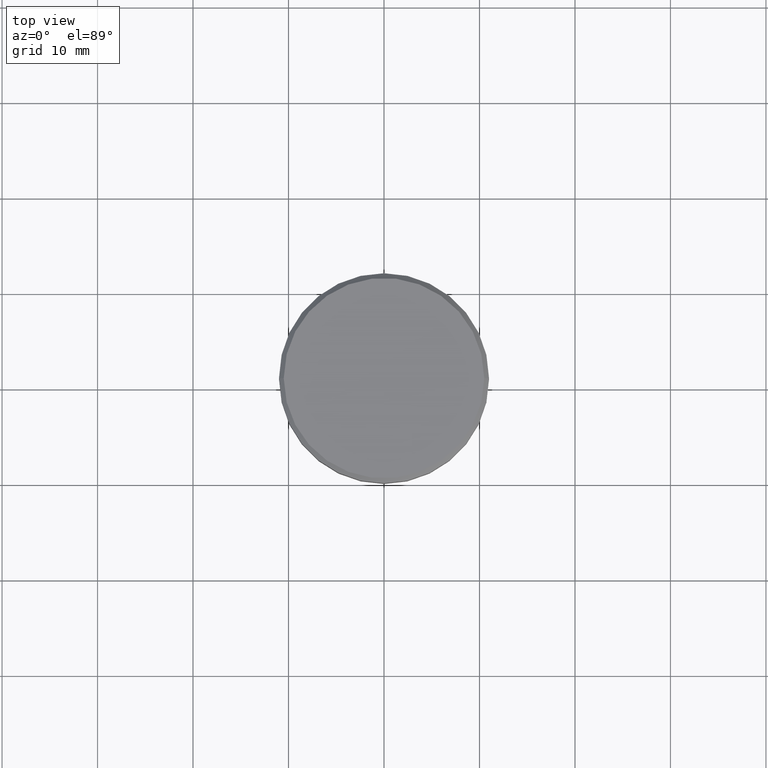
[diagram: clean part render]
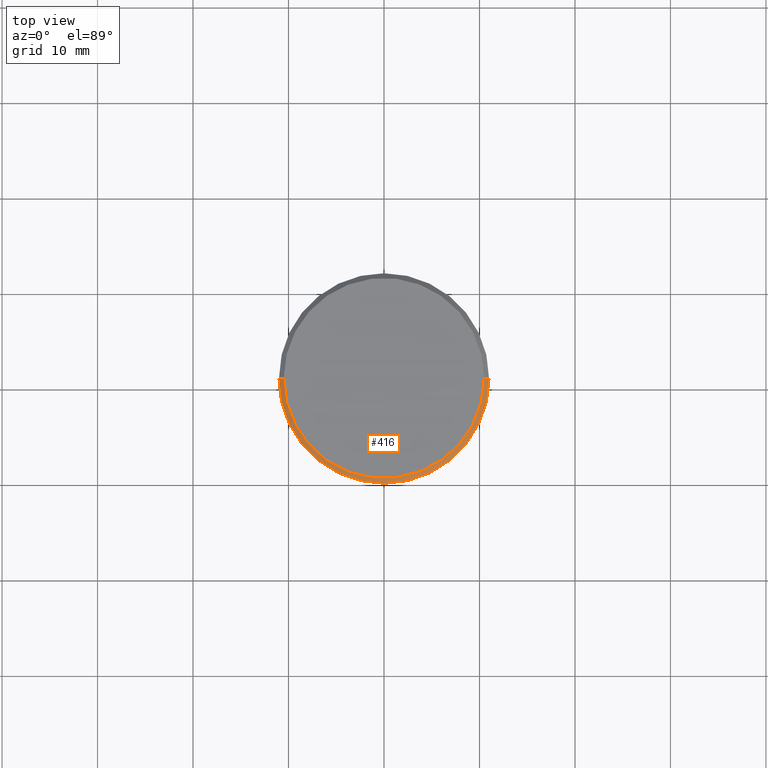
[diagram: same view with one face highlighted and labeled with its STEP entity id]
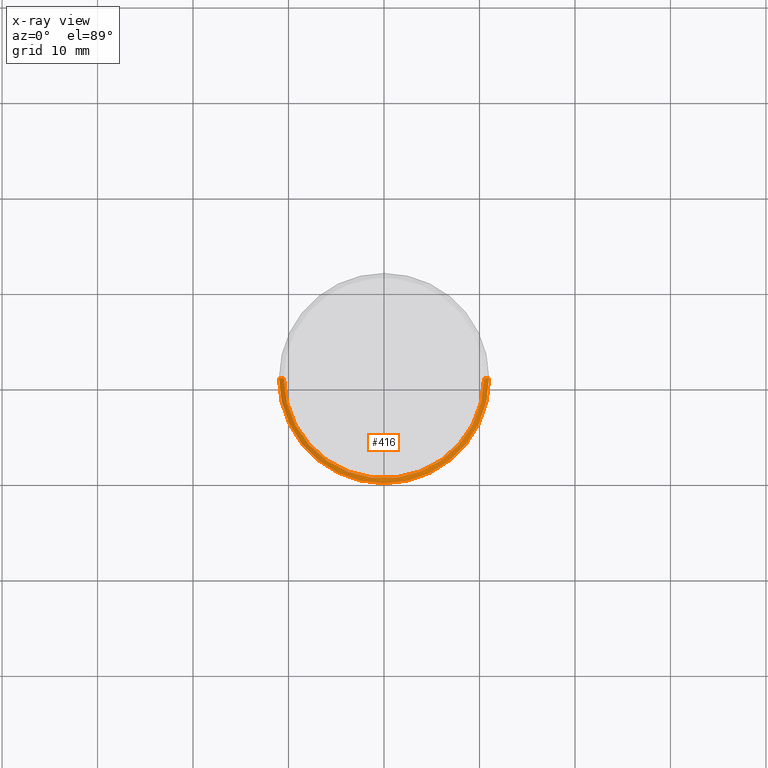
[diagram: x-ray of the same camera — body ghosted, the highlighted face saturated]
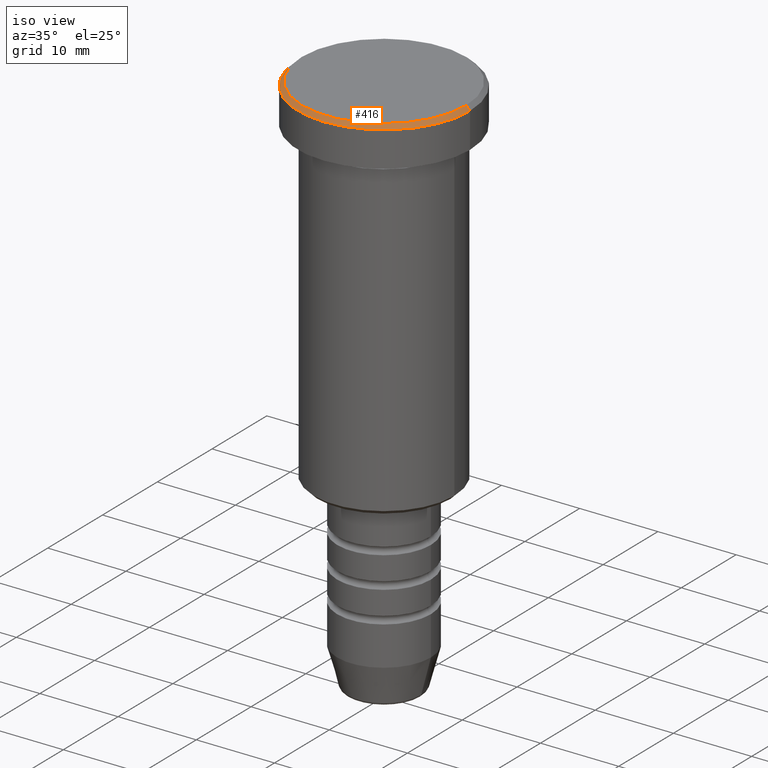
[diagram: same view with one face highlighted and labeled with its STEP entity id]
A machine part, top view. The second image highlights one B-rep face of the part: STEP entity #416.
The next image is the same camera in x-ray: the body ghosted, the highlighted face saturated — about 0% of this face is hidden behind the body in this view.
A second angle (iso view) of the same face is appended — the face is thin or edge-on in the first view.
In plain terms, the highlighted conical surface has half-angle 45 deg.
Its self-contained STEP definition (entity closure, byte-faithful):
#6 = ORIENTED_EDGE ( 'NONE', *, *, #815, .T. ) ;
#95 = VERTEX_POINT ( 'NONE', #118 ) ;
#102 = VERTEX_POINT ( 'NONE', #593 ) ;
#118 = CARTESIAN_POINT ( 'NONE',  ( -10.49999999999998224, 0.000000000000000000, 0.000000000000000000 ) ) ;
#181 = ORIENTED_EDGE ( 'NONE', *, *, #191, .F. ) ;
#191 = EDGE_CURVE ( 'NONE', #95, #514, #348, .T. ) ;
#202 = CARTESIAN_POINT ( 'NONE',  ( 0.000000000000000000, 0.000000000000000000, -0.5000000000000229816 ) ) ;
#219 = DIRECTION ( 'NONE',  ( -0.000000000000000000, -0.000000000000000000, 1.000000000000000000 ) ) ;
#272 = CARTESIAN_POINT ( 'NONE',  ( 0.000000000000000000, 0.000000000000000000, 0.000000000000000000 ) ) ;
#329 = CIRCLE ( 'NONE', #997, 11.00000000000000178 ) ;
#348 = CIRCLE ( 'NONE', #836, 10.49999999999998224 ) ;
#349 = LINE ( 'NONE', #688, #922 ) ;
#356 = EDGE_LOOP ( 'NONE', ( #638, #181, #6, #405 ) ) ;
#405 = ORIENTED_EDGE ( 'NONE', *, *, #553, .F. ) ;
#416 = ADVANCED_FACE ( 'NONE', ( #817 ), #728, .T. ) ;
#477 = CARTESIAN_POINT ( 'NONE',  ( 10.49999999999998224, 1.285879139104718661E-15, 0.000000000000000000 ) ) ;
#500 = DIRECTION ( 'NONE',  ( 1.000000000000000000, 0.000000000000000000, 0.000000000000000000 ) ) ;
#514 = VERTEX_POINT ( 'NONE', #844 ) ;
#553 = EDGE_CURVE ( 'NONE', #102, #987, #329, .T. ) ;
#558 = CARTESIAN_POINT ( 'NONE',  ( -11.00000000000000178, 1.347111479062088602E-15, -0.5000000000000229816 ) ) ;
#575 = DIRECTION ( 'NONE',  ( 0.000000000000000000, 0.000000000000000000, -1.000000000000000000 ) ) ;
#593 = CARTESIAN_POINT ( 'NONE',  ( 11.00000000000000178, 0.000000000000000000, -0.5000000000000229816 ) ) ;
#602 = AXIS2_PLACEMENT_3D ( 'NONE', #272, #725, #1088 ) ;
#638 = ORIENTED_EDGE ( 'NONE', *, *, #1017, .F. ) ;
#688 = CARTESIAN_POINT ( 'NONE',  ( -10.49999999999998224, 0.000000000000000000, 0.000000000000000000 ) ) ;
#708 = DIRECTION ( 'NONE',  ( 1.000000000000000000, 0.000000000000000000, 0.000000000000000000 ) ) ;
#725 = DIRECTION ( 'NONE',  ( 0.000000000000000000, 0.000000000000000000, -1.000000000000000000 ) ) ;
#728 = CONICAL_SURFACE ( 'NONE', #602, 10.49999999999998224, 0.7853981633974447263 ) ;
#815 = EDGE_CURVE ( 'NONE', #95, #987, #349, .T. ) ;
#817 = FACE_OUTER_BOUND ( 'NONE', #356, .T. ) ;
#836 = AXIS2_PLACEMENT_3D ( 'NONE', #1039, #219, #708 ) ;
#844 = CARTESIAN_POINT ( 'NONE',  ( 10.49999999999998224, 1.316495309083403632E-15, 0.000000000000000000 ) ) ;
#903 = VECTOR ( 'NONE', #1021, 1000.000000000000114 ) ;
#922 = VECTOR ( 'NONE', #978, 1000.000000000000114 ) ;
#978 = DIRECTION ( 'NONE',  ( -0.7071067811865451302, 0.000000000000000000, -0.7071067811865500152 ) ) ;
#987 = VERTEX_POINT ( 'NONE', #558 ) ;
#997 = AXIS2_PLACEMENT_3D ( 'NONE', #202, #575, #500 ) ;
#1009 = LINE ( 'NONE', #477, #903 ) ;
#1017 = EDGE_CURVE ( 'NONE', #514, #102, #1009, .T. ) ;
#1021 = DIRECTION ( 'NONE',  ( 0.7071067811865451302, 8.659560562354904508E-17, -0.7071067811865500152 ) ) ;
#1039 = CARTESIAN_POINT ( 'NONE',  ( 0.000000000000000000, 0.000000000000000000, 0.000000000000000000 ) ) ;
#1088 = DIRECTION ( 'NONE',  ( -1.000000000000000000, 0.000000000000000000, 0.000000000000000000 ) ) ;